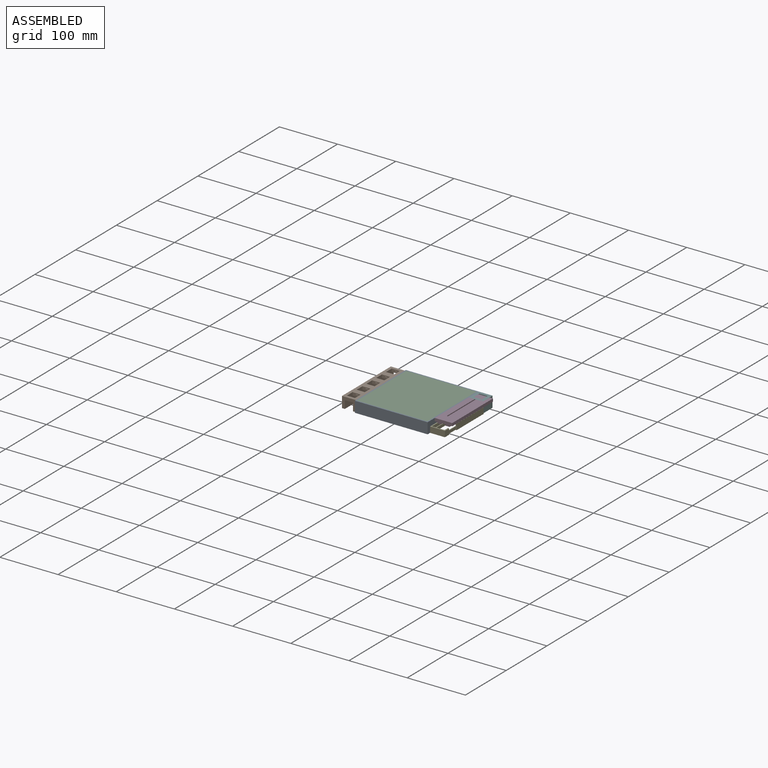
[diagram: assembled view]
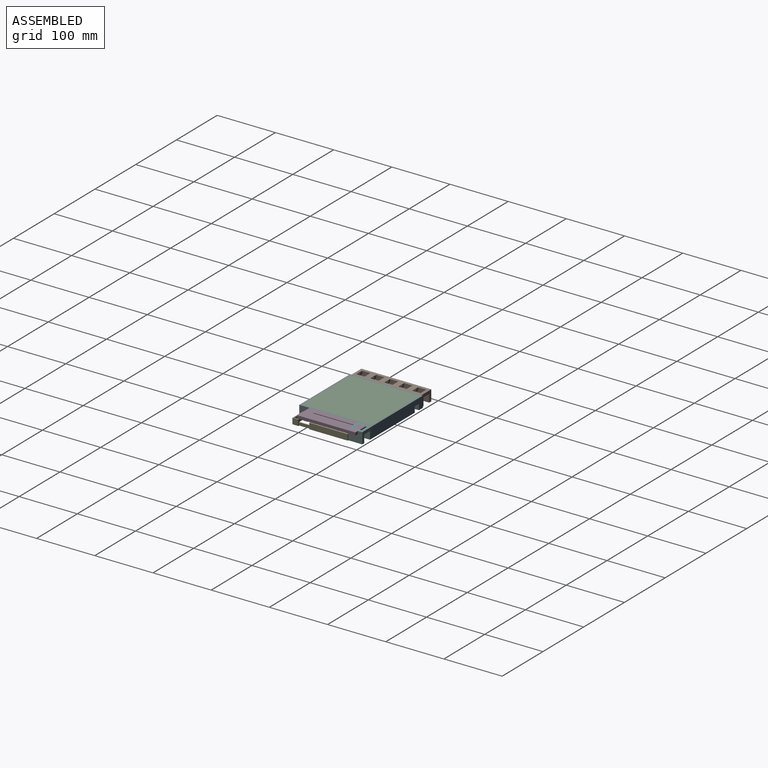
[diagram: assembled view, second angle]
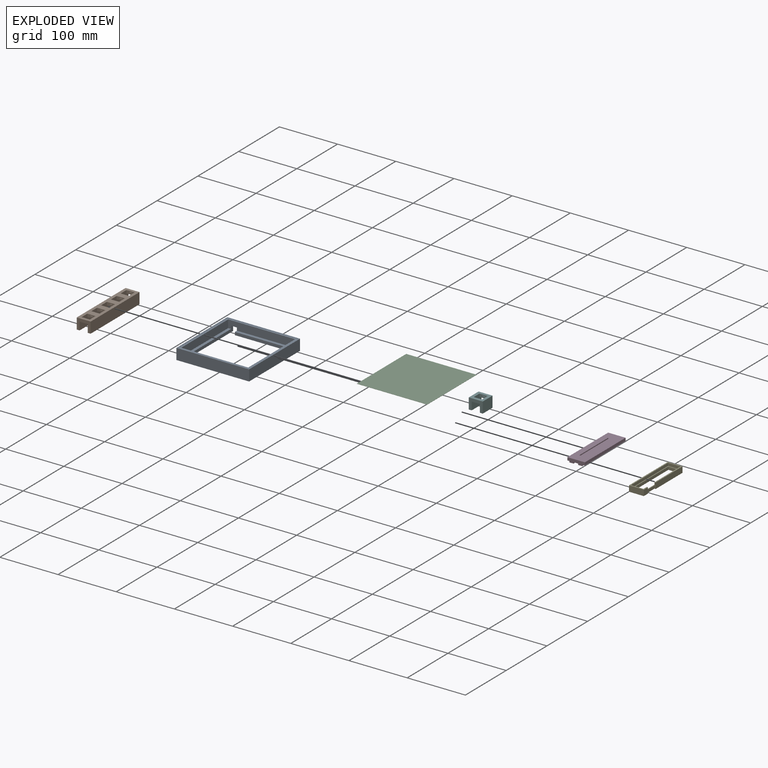
[diagram: exploded view]
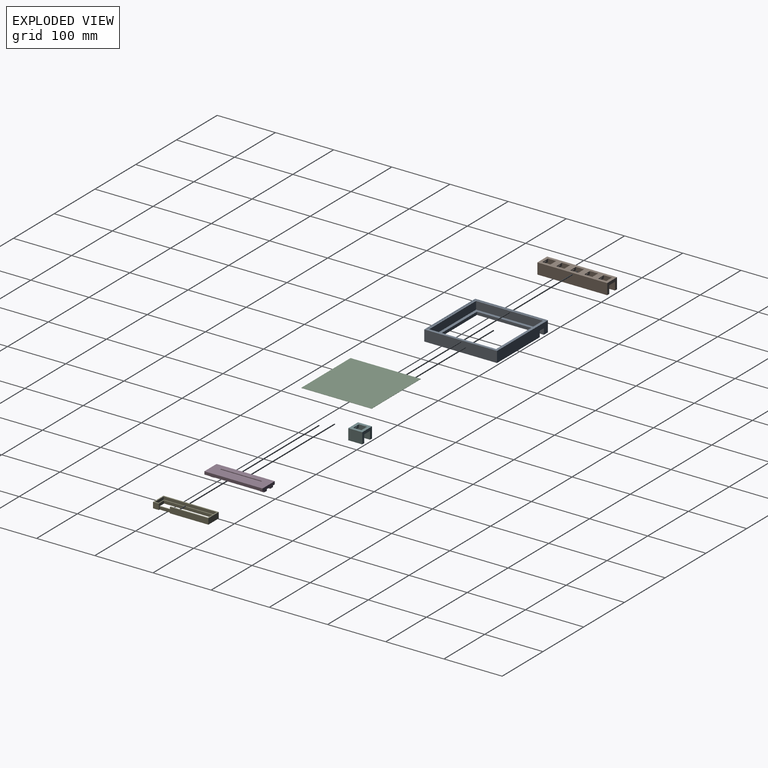
[diagram: exploded view, second angle]
FCSTD DOCUMENT  (FreeCAD 1.0R39319 (Git))
Label: Case
License: All rights reserved
LicenseURL: https://en.wikipedia.org/wiki/All_rights_reserved
objects: Part::Box×22, App::Link×11, Part::Cut×10, App::Part×8, App::VarSet×7, Part::MultiFuse×5, Part::Extrusion×2, Sketcher::SketchObject×1, Part::Mirroring×1, Part::Cylinder×1
note: 43 computed .brp shape members not serialized (recipe doc carries the construction recipe); baked Part::Feature solids carry a one-line shape summary decoded from their .brp

FEATURE [Sketcher::SketchObject] Sketch001  label="LedMatrixShoulders"
  ArcFitTolerance = 1e-06
  FullyConstrained = true
  MakeInternals = false
  MapMode = 5
  Placement = pos=(0,0,0) rot=(1,0,0;1.5708rad)
  expr: Constraints[18] = <<Led Matrix Vars>>.led_matrix_pcb_shoulder_to_transparent_layer_height
  expr: Constraints[19] = <<Led Matrix Vars>>.led_matrix_pcb_shoulder_height
  expr: Constraints[20] = <<Led Matrix Vars>>.led_matrix_pcb_shoulder_width
  expr: Constraints[21] = <<Led Matrix Vars>>.led_matrix_transparent_layer_spacing
  expr: Constraints[25] = <<Led Matrix Vars>>.led_matrix_pcb_width / 2
  expr: Constraints[3] = <<Led Matrix Vars>>.led_matrix_transparent_layer_height
  expr: Constraints[4] = <<Led Matrix Vars>>.led_matrix_transparent_layer_shoulder_width
  sketch-geometry (9):
    g0: LineSegment StartX=-60.5 StartY=0 StartZ=0 EndX=-60.5 EndY=-0.3 EndZ=0
    g1: LineSegment StartX=-60.5 StartY=-0.3 StartZ=0 EndX=-57.5 EndY=-0.3 EndZ=0
    g2: LineSegment StartX=-60.5 StartY=0 StartZ=0 EndX=-62.5 EndY=0 EndZ=0
    g3: LineSegment StartX=-62.5 StartY=0 StartZ=0 EndX=-62.5 EndY=-18.8 EndZ=0
    g4: LineSegment StartX=-62.5 StartY=-18.8 StartZ=0 EndX=-52.5 EndY=-18.8 EndZ=0
    g5: LineSegment StartX=-52.5 StartY=-18.8 StartZ=0 EndX=-52.5 EndY=-13.8 EndZ=0
    g6: LineSegment StartX=-52.5 StartY=-13.8 StartZ=0 EndX=-57.5 EndY=-13.8 EndZ=0
    g7: LineSegment StartX=-57.5 StartY=-13.8 StartZ=0 EndX=-57.5 EndY=-0.3 EndZ=0
    g8: LineSegment [constr] StartX=-57.5 StartY=-0.3 StartZ=0 EndX=0 EndY=-0.3 EndZ=0
  constraints (27):
    c: Vertical(g0)
    c: Coincident(g0,g1)
    c: Horizontal(g1)
    c: DistanceY(g0,g0) = 0.3
    c: DistanceX(g1,g1) = 3
    c: Coincident(g0,g2)
    c: Horizontal(g2)
    c: Coincident(g2,g3)
    c: Vertical(g3)
    c: Coincident(g3,g4)
    c: Horizontal(g4)
    c: Coincident(g4,g5)
    c: Vertical(g5)
    c: Coincident(g5,g6)
    c: Horizontal(g6)
    c: Coincident(g6,g7)
    c: Coincident(g7,g1)
    c: Vertical(g7)
    c: DistanceY(g7,g7) = 13.5
    c: DistanceY(g5,g5) = 5
    c: DistanceX(g6,g6) = 5
    c: DistanceX(g2,g2) = 2
    c: PointOnObject(g2,g-1)
    c: Coincident(g8,g1)
    c: Horizontal(g8)
    c: DistanceX(g8,g8) = 57.5
    c: PointOnObject(g8,g-2)
FEATURE [App::VarSet] VarSet  label="Led Matrix Vars"
  height_total = 18.8
  led_matrix_pcb_height = 2
  led_matrix_pcb_led_height = 1.5
  led_matrix_pcb_shoulder_height = 5
  led_matrix_pcb_shoulder_to_transparent_layer_height = 13.5
  led_matrix_pcb_shoulder_width = 5
  led_matrix_pcb_width = 115
  led_matrix_pin_width = 10
  led_matrix_screw_diameter = 3
  led_matrix_screw_spacing = 1
  led_matrix_space_from_leds_to_transparent_layer = 10
  led_matrix_transparent_layer_height = 0.3
  led_matrix_transparent_layer_shoulder_width = 3
  led_matrix_transparent_layer_spacing = 2
  transparent_layer_width_total = 121
  width_total = 125
  expr: height_total = led_matrix_pcb_shoulder_height + led_matrix_pcb_shoulder_to_transparent_layer_height + led_matrix_transparent_layer_height
  expr: led_matrix_pcb_shoulder_to_transparent_layer_height = led_matrix_pcb_height + led_matrix_pcb_led_height + led_matrix_space_from_leds_to_transparent_layer
  expr: led_matrix_pcb_shoulder_width = 2 * led_matrix_screw_spacing + led_matrix_screw_diameter
  expr: transparent_layer_width_total = led_matrix_transparent_layer_shoulder_width * 2 + led_matrix_pcb_width
  expr: width_total = led_matrix_pcb_width + led_matrix_transparent_layer_shoulder_width * 2 + led_matrix_transparent_layer_spacing * 2
FEATURE [Part::Extrusion] Extrude
  Base = -> Sketch001
  Dir = (0,-1,2e-16)
  DirMode = 2
  FaceMakerClass = Part::FaceMakerBullseye
  FaceMakerMode = 3
  LengthFwd = 125
  LengthRev = 0
  Solid = true
  Symmetric = false
  expr: LengthFwd = <<Led Matrix Vars>>.led_matrix_pcb_width + 2 * (<<Led Matrix Vars>>.led_matrix_transparent_layer_shoulder_width + <<Led Matrix Vars>>.led_matrix_transparent_layer_spacing)
FEATURE [Part::Mirroring] Part__Mirroring  label="Extrude (Mirror #1)"
  Base = (0,0,0)
  MirrorPlane = -> YZ_Plane001
  Normal = (1,-1e-16,1e-16)
  Source = -> Extrude
FEATURE [App::Link] Link  label="Extrude001"
  LinkPlacement = pos=(-62.5,-62.5,0) rot=(0,0,1;1.5708rad)
  LinkedObject = -> Extrude
  Placement = pos=(-62.5,-62.5,0) rot=(0,0,1;1.5708rad)
  expr: .Placement.Base.x = -(<<Led Matrix Vars>>.led_matrix_pcb_width / 2) - <<Led Matrix Vars>>.led_matrix_transparent_layer_shoulder_width - <<Led Matrix Vars>>.led_matrix_transparent_layer_spacing
  expr: .Placement.Base.y = -(<<Led Matrix Vars>>.led_matrix_pcb_width / 2) - <<Led Matrix Vars>>.led_matrix_transparent_layer_shoulder_width - <<Led Matrix Vars>>.led_matrix_transparent_layer_spacing
FEATURE [App::Link] Link001  label="Extrude002"
  LinkPlacement = pos=(62.5,-62.5,0) rot=(0,0,1;-1.5708rad)
  LinkedObject = -> Extrude
  Placement = pos=(62.5,-62.5,0) rot=(0,0,1;-1.5708rad)
  expr: .Placement.Base.x = <<Led Matrix Vars>>.led_matrix_pcb_width / 2 + <<Led Matrix Vars>>.led_matrix_transparent_layer_shoulder_width + <<Led Matrix Vars>>.led_matrix_transparent_layer_spacing
  expr: .Placement.Base.y = -(<<Led Matrix Vars>>.led_matrix_pcb_width / 2) - <<Led Matrix Vars>>.led_matrix_transparent_layer_shoulder_width - <<Led Matrix Vars>>.led_matrix_transparent_layer_spacing
FEATURE [Part::Box] Box  label="Cube"
  AttacherType = Attacher::AttachEngine3D
  Height = 10
  Length = 10
  Placement = pos=(-52.5,-10,-18.8) rot=(0,0,1;0rad)
  Width = 10
  expr: .Placement.Base.x = -<<Led Matrix Vars>>.led_matrix_pcb_width / 2 + <<Led Matrix Vars>>.led_matrix_pin_width - <<Led Matrix Vars>>.led_matrix_pcb_shoulder_width
  expr: .Placement.Base.y = -<<Led Matrix Vars>>.led_matrix_transparent_layer_spacing - <<Led Matrix Vars>>.led_matrix_transparent_layer_shoulder_width - <<Led Matrix Vars>>.led_matrix_pcb_shoulder_width
  expr: .Placement.Base.z = -<<Led Matrix Vars>>.led_matrix_transparent_layer_height - <<Led Matrix Vars>>.led_matrix_pcb_shoulder_to_transparent_layer_height - <<Led Matrix Vars>>.led_matrix_pcb_shoulder_height
  expr: Height = <<Led Matrix Vars>>.led_matrix_pcb_shoulder_height * 2
  expr: Length = <<Led Matrix Vars>>.led_matrix_pin_width
  expr: Width = <<Led Matrix Vars>>.led_matrix_pcb_shoulder_width + <<Led Matrix Vars>>.led_matrix_transparent_layer_shoulder_width + <<Led Matrix Vars>>.led_matrix_transparent_layer_spacing
FEATURE [Part::Cut] Cut
  Base = -> Link001
  Refine = true
  Tool = -> Box
FEATURE [App::VarSet] VarSet001  label="Switch Socket Vars"
  Switch_Socket_height = 5.2
  Switch_Socket_spacing = 5
  height_below_slow = 3
  height_faceplate_to_slot = 1.2
  height_slot = 1
  switch_count = 0
  width = 14
  width_slot = 4.5
  width_total = 24
  expr: Switch_Socket_height = height_faceplate_to_slot + height_slot + height_below_slow
  expr: width_total = width + Switch_Socket_spacing * 2
FEATURE [Part::Box] Box001  label="Frame"
  AttacherType = Attacher::AttachEngine3D
  Height = 5.2
  Length = 24
  Width = 24
  expr: Height = <<Switch Socket Vars>>.Switch_Socket_height
  expr: Length = <<Switch Socket Vars>>.width + 2 * <<Switch Socket Vars>>.Switch_Socket_spacing
  expr: Width = <<Switch Socket Vars>>.width + 2 * <<Switch Socket Vars>>.Switch_Socket_spacing
FEATURE [Part::Box] Box002  label="CutOut"
  AttacherType = Attacher::AttachEngine3D
  Height = 5.2
  Length = 14
  Placement = pos=(5,5,0) rot=(0,0,1;0rad)
  Width = 14
  expr: .Placement.Base.x = <<Switch Socket Vars>>.Switch_Socket_spacing
  expr: .Placement.Base.y = <<Switch Socket Vars>>.Switch_Socket_spacing
  expr: Height = <<Switch Socket Vars>>.Switch_Socket_height
  expr: Length = <<Switch Socket Vars>>.width
  expr: Width = <<Switch Socket Vars>>.width
FEATURE [Part::Cut] Cut001
  Base = -> Box001
  Placement = pos=(0,0,-5.2) rot=(0,0,1;0rad)
  Refine = true
  Tool = -> Box002
  expr: .Placement.Base.z = -<<Switch Socket Vars>>.Switch_Socket_height
FEATURE [Part::Box] Box003  label="slot_bottom"
  AttacherType = Attacher::AttachEngine3D
  Height = 1
  Length = 4.5
  Placement = pos=(9.75,4,-2.2) rot=(0,0,1;0rad)
  Width = 1
  expr: .Placement.Base.x = <<Switch Socket Vars>>.width / 2 - <<Switch Socket Vars>>.width_slot / 2 + <<Switch Socket Vars>>.Switch_Socket_spacing
  expr: .Placement.Base.y = <<Switch Socket Vars>>.Switch_Socket_spacing - <<Switch Socket Vars>>.height_slot
  expr: .Placement.Base.z = -<<Switch Socket Vars>>.height_faceplate_to_slot - <<Switch Socket Vars>>.height_slot
  expr: Height = <<Switch Socket Vars>>.height_slot
  expr: Length = <<Switch Socket Vars>>.width_slot
  expr: Width = <<Switch Socket Vars>>.height_slot
FEATURE [Part::Box] Box004  label="slot_top"
  AttacherType = Attacher::AttachEngine3D
  Height = 1
  Length = 4.5
  Placement = pos=(9.75,19,-2.2) rot=(0,0,1;0rad)
  Width = 1
  expr: .Placement.Base.x = <<Switch Socket Vars>>.width / 2 - <<Switch Socket Vars>>.width_slot / 2 + <<Switch Socket Vars>>.Switch_Socket_spacing
  expr: .Placement.Base.y = <<Switch Socket Vars>>.Switch_Socket_spacing + <<Switch Socket Vars>>.width
  expr: .Placement.Base.z = -<<Switch Socket Vars>>.height_faceplate_to_slot - <<Switch Socket Vars>>.height_slot
  expr: Height = <<Switch Socket Vars>>.height_slot
  expr: Length = <<Switch Socket Vars>>.width_slot
  expr: Width = <<Switch Socket Vars>>.height_slot
FEATURE [Part::Cut] Cut002
  Base = -> Cut001
  Refine = true
  Tool = -> Box003
FEATURE [Part::Cut] Cut003
  Base = -> Cut002
  Refine = true
  Tool = -> Box004
FEATURE [App::Part] Part001  label="MX Low Profile Switch Socket 1"
  Group = -> [VarSet001,Box001,Box002,Cut001,Box004,Box003,Cut002,Cut003]
  Origin = -> Origin002
FEATURE [App::Link] Link002  label="MX Low Profile Switch Socket 2"
  LinkPlacement = pos=(0,-24,0) rot=(0,0,1;0rad)
  LinkedObject = -> Part001
  Placement = pos=(0,-24,0) rot=(0,0,1;0rad)
  expr: .Placement.Base.y = -<<Switch Socket Vars>>.width_total
FEATURE [App::Link] Link003  label="MX Low Profile Switch Socket 3"
  LinkPlacement = pos=(0,-48,0) rot=(0,0,1;0rad)
  LinkedObject = -> Part001
  Placement = pos=(0,-48,0) rot=(0,0,1;0rad)
  expr: .Placement.Base.y = -2 * <<Switch Socket Vars>>.width_total
FEATURE [App::Link] Link004  label="MX Low Profile Switch Socket 4"
  LinkPlacement = pos=(0,-72,0) rot=(0,0,1;0rad)
  LinkedObject = -> Link003
  Placement = pos=(0,-72,0) rot=(0,0,1;0rad)
  expr: .Placement.Base.y = -3 * <<Switch Socket Vars>>.width_total
FEATURE [App::Link] Link005  label="MX Low Profile Switch Socket 5"
  LinkPlacement = pos=(0,-96,0) rot=(0,0,1;0rad)
  LinkedObject = -> Part001
  Placement = pos=(0,-96,0) rot=(0,0,1;0rad)
  expr: .Placement.Base.y = -4 * <<Switch Socket Vars>>.width_total
FEATURE [Part::Box] Box005  label="Cube001"
  AttacherType = Attacher::AttachEngine3D
  Height = 0.3
  Length = 121
  Placement = pos=(0,0,-0.3) rot=(0,0,1;0rad)
  Width = 121
  expr: .Placement.Base.z = -<<Led Matrix Vars>>.led_matrix_transparent_layer_height
  expr: Height = <<Led Matrix Vars>>.led_matrix_transparent_layer_height
  expr: Length = <<Led Matrix Vars>>.transparent_layer_width_total
  expr: Width = <<Led Matrix Vars>>.transparent_layer_width_total
FEATURE [App::Part] Part006  label="Let Matrix Cover"
  Group = -> [Box005]
  Origin = -> Origin005
  Placement = pos=(-60.5,-123,0) rot=(0,0,1;0rad)
  expr: .Placement.Base.x = -<<Led Matrix Vars>>.width_total / 2 + <<Led Matrix Vars>>.led_matrix_transparent_layer_spacing
  expr: .Placement.Base.y = -<<Led Matrix Vars>>.width_total + <<Led Matrix Vars>>.led_matrix_transparent_layer_spacing
FEATURE [Part::Box] Box006  label="Cube002"
  AttacherType = Attacher::AttachEngine3D
  Height = 18.8
  Length = 5
  Placement = pos=(0,-96,-18.8) rot=(0,0,1;0rad)
  Width = 120
  expr: .Placement.Base.y = -<<Switch Socket Vars>>.width_total * 4
  expr: .Placement.Base.z = -<<Led Matrix Vars>>.height_total
  expr: Height = <<Led Matrix Vars>>.height_total
  expr: Length = <<Switch Socket Vars>>.Switch_Socket_spacing
  expr: Width = <<Switch Socket Vars>>.width_total * 5
FEATURE [App::Link] Link006  label="Cube003"
  LinkPlacement = pos=(19,-96,-18.8) rot=(0,0,1;0rad)
  LinkedObject = -> Box006
  Placement = pos=(19,-96,-18.8) rot=(0,0,1;0rad)
  expr: .Placement.Base.x = <<Switch Socket Vars>>.width_total - <<Switch Socket Vars>>.Switch_Socket_spacing
  expr: .Placement.Base.y = -<<Switch Socket Vars>>.width_total * 4
  expr: .Placement.Base.z = -<<Led Matrix Vars>>.height_total
FEATURE [App::Part] Part005  label="Switches"
  Group = -> [Part001,Link002,Link003,Link004,Link005,Box006,Link006]
  Origin = -> Origin004
  Placement = pos=(-86.5,-26.5,0) rot=(0,0,1;0rad)
  expr: .Placement.Base.x = -<<Led Matrix Vars>>.width_total / 2 - <<Switch Socket Vars>>.width_total
  expr: .Placement.Base.y = -<<Switch Socket Vars>>.width_total - <<Led Matrix Vars>>.led_matrix_transparent_layer_spacing - <<Led Matrix Vars>>.led_matrix_transparent_layer_shoulder_width - <<Led Matrix Vars>>.led_matrix_pcb_width / 2 + 5 * <<Switch Socket Vars>>.width_total / 2
FEATURE [Part::Box] Box007  label="FaderBody"
  AttacherType = Attacher::AttachEngine3D
  Height = 5
  Length = 30
  Width = 100
  expr: Height = <<Components>>.Faceplate_Width
  expr: Length = <<Fader Vars>>.Width + <<Fader Vars>>.Spacing * 2
  expr: Width = <<Fader Vars>>.Length + <<Fader Vars>>.Spacing * 2
FEATURE [App::VarSet] VarSet003  label="Fader Vars"
  Length = 90
  Screw_Diameter = 3
  Screw_Length = 5
  Screw_Wall_Thickness = 2
  Shoulder_Height = 5
  Slot_Length = 70
  Slot_Width = 2
  Spacing = 5
  Width = 20
  expr: Slot_Length = Length - 2 * 10 mm
FEATURE [Part::Box] Box008  label="FaderSlot"
  AttacherType = Attacher::AttachEngine3D
  Height = 5
  Length = 2
  Placement = pos=(10,15,0) rot=(0,0,1;0rad)
  Width = 70
  expr: .Placement.Base.x = 5 mm + <<Fader Vars>>.Spacing
  expr: .Placement.Base.y = (<<Fader Vars>>.Length - <<Fader Vars>>.Slot_Length + <<Fader Vars>>.Spacing * 2) / 2
  expr: Height = <<Components>>.Faceplate_Width
  expr: Length = <<Fader Vars>>.Slot_Width
  expr: Width = <<Fader Vars>>.Slot_Length
FEATURE [Part::Cut] Cut004  label="Top Plate"
  Base = -> Box007
  Refine = true
  Tool = -> Box008
FEATURE [Part::Box] Box009  label="FaderShoulder"
  AttacherType = Attacher::AttachEngine3D
  Height = 5
  Length = 7
  Placement = pos=(0,5,-5) rot=(0,0,1;0rad)
  Width = 7
  expr: .Placement.Base.y = <<Fader Vars>>.Spacing
  expr: .Placement.Base.z = -<<Components>>.Faceplate_Width
  expr: Height = <<Fader Vars>>.Shoulder_Height
  expr: Length = <<Fader Vars>>.Screw_Diameter + <<Fader Vars>>.Screw_Wall_Thickness * 2
  expr: Width = <<Fader Vars>>.Screw_Diameter + <<Fader Vars>>.Screw_Wall_Thickness * 2
FEATURE [Part::Cylinder] Cylinder  label="ScrewHole"
  Angle = 360
  AttacherType = Attacher::AttachEngine3D
  FirstAngle = 0
  Height = 5
  Placement = pos=(3.5,8.5,-5) rot=(0,0,1;0rad)
  Radius = 1.5
  SecondAngle = 0
  expr: .Placement.Base.x = <<Fader Vars>>.Screw_Diameter / 2 + <<Fader Vars>>.Screw_Wall_Thickness
  expr: .Placement.Base.y = <<Fader Vars>>.Spacing + <<Fader Vars>>.Screw_Diameter / 2 + <<Fader Vars>>.Screw_Wall_Thickness
  expr: .Placement.Base.z = -<<Components>>.Faceplate_Width
  expr: Height = <<Fader Vars>>.Screw_Length
  expr: Radius = <<Fader Vars>>.Screw_Diameter / 2
FEATURE [Part::Cut] Cut005  label="Mount Socket 1"
  Base = -> Box009
  Refine = true
  Tool = -> Cylinder
FEATURE [App::Link] Link007  label="Mount Socket 2"
  LinkPlacement = pos=(15,0,0) rot=(0,0,1;0rad)
  LinkedObject = -> Cut005
  Placement = pos=(15,0,0) rot=(0,0,1;0rad)
FEATURE [App::Link] Link008  label="Mount Socket 3"
  LinkPlacement = pos=(0,85,0) rot=(0,0,1;0rad)
  LinkedObject = -> Cut005
  Placement = pos=(0,85,0) rot=(0,0,1;0rad)
FEATURE [App::Link] Link009  label="Mount Socket 4"
  LinkPlacement = pos=(15,85,0) rot=(0,0,1;0rad)
  LinkedObject = -> Cut005
  Placement = pos=(15,85,0) rot=(0,0,1;0rad)
FEATURE [App::Part] Part007  label="Fader"
  Group = -> [VarSet003,Box008,Box007,Cut004,Box009,Cylinder,Cut005,Link007,Link008,Link009]
  Origin = -> Origin006
  Placement = pos=(62.5,-107.5,-5) rot=(0,0,1;0rad)
  expr: .Placement.Base.y = (-<<Led Matrix Vars>>.width_total - <<Fader Vars>>.Length) / 2
FEATURE [App::VarSet] VarSet002  label="Components"
  Faceplate_Width = 5
FEATURE [App::VarSet] VarSet004  label="FV"
  bottom_to_port_top = 27
  bottom_to_ports = 8
  frame_height = 10
  length = 91
  lip = 1.5
  top_to_ports = 60.35
  wall = 2
  width = 21.5
FEATURE [Part::Box] Box010  label="Cube004"
  AttacherType = Attacher::AttachEngine3D
  Height = 5
  Length = 21.5
  Width = 91
  expr: Length = <<FV>>.width
  expr: Width = <<FV>>.length
FEATURE [Part::Box] Box011  label="Cube005"
  AttacherType = Attacher::AttachEngine3D
  Height = 5
  Length = 18.5
  Placement = pos=(1.5,1.5,0) rot=(0,0,1;0rad)
  Width = 88
  expr: Length = <<FV>>.width - <<FV>>.lip * 2
  expr: Width = <<FV>>.length - <<FV>>.lip * 2
FEATURE [Part::Cut] Cut006  label="lip"
  Base = -> Box010
  Refine = true
  Tool = -> Box011
FEATURE [Part::Box] Box013  label="frame_left"
  AttacherType = Attacher::AttachEngine3D
  Height = 10
  Length = 2
  Placement = pos=(-2,0,0) rot=(0,0,1;0rad)
  Width = 91
  expr: .Placement.Base.x = -<<FV>>.wall
  expr: Height = <<FV>>.frame_height
  expr: Length = <<FV>>.wall
  expr: Width = <<FV>>.length
FEATURE [Part::Box] Box014  label="frame_bottom"
  AttacherType = Attacher::AttachEngine3D
  Height = 10
  Length = 25.5
  Placement = pos=(-2,-2,0) rot=(0,0,1;0rad)
  Width = 2
  expr: .Placement.Base.x = -<<FV>>.wall
  expr: .Placement.Base.y = -<<FV>>.wall
  expr: Height = <<FV>>.frame_height
  expr: Length = <<FV>>.width + <<FV>>.wall * 2
  expr: Width = <<FV>>.wall
FEATURE [Part::Box] Box015  label="frame_top"
  AttacherType = Attacher::AttachEngine3D
  Height = 10
  Length = 25.5
  Placement = pos=(-2,91,0) rot=(0,0,1;0rad)
  Width = 2
  expr: .Placement.Base.x = -<<FV>>.wall
  expr: .Placement.Base.y = <<FV>>.length
  expr: Height = <<FV>>.frame_height
  expr: Length = <<FV>>.width + <<FV>>.wall * 2
  expr: Width = <<FV>>.wall
FEATURE [Part::Box] Box016  label="frame_right_bottom"
  AttacherType = Attacher::AttachEngine3D
  Height = 10
  Length = 2
  Placement = pos=(21.5,0,0) rot=(0,0,1;0rad)
  Width = 8
  expr: .Placement.Base.x = <<FV>>.width
  expr: Height = <<FV>>.frame_height
  expr: Length = <<FV>>.wall
  expr: Width = <<FV>>.bottom_to_ports
FEATURE [Part::Box] Box017  label="frame_right_top"
  AttacherType = Attacher::AttachEngine3D
  Height = 10
  Length = 2
  Placement = pos=(21.5,27,0) rot=(0,0,1;0rad)
  Width = 64
  expr: .Placement.Base.x = <<FV>>.width
  expr: .Placement.Base.y = <<FV>>.bottom_to_port_top
  expr: Height = <<FV>>.frame_height
  expr: Length = <<FV>>.wall
  expr: Width = <<FV>>.length - <<FV>>.bottom_to_port_top
FEATURE [Part::MultiFuse] Fusion
  Refine = true
  Shapes = -> [Box013,Box014]
FEATURE [Part::MultiFuse] Fusion001
  Refine = true
  Shapes = -> [Fusion,Box017]
FEATURE [Part::MultiFuse] Fusion002
  Refine = true
  Shapes = -> [Fusion001,Box016]
FEATURE [Part::MultiFuse] Fusion003  label="frame"
  Refine = true
  Shapes = -> [Fusion002,Box015]
FEATURE [Part::MultiFuse] Fusion004
  Refine = true
  Shapes = -> [Cut006,Fusion003]
FEATURE [App::Part] Part008  label="Fader v2"
  Group = -> [VarSet004,Box013,Box014,Fusion001,Box010,Box011,Cut006,Box015,Box016,Box017,Fusion003,Fusion,Fusion002,Fusion004]
  Origin = -> Origin
  Placement = pos=(64.5,-117,-18.8) rot=(0,0,1;0rad)
  expr: .Placement.Base.x = <<Led Matrix Vars>>.led_matrix_transparent_layer_spacing + <<Led Matrix Vars>>.width_total / 2
  expr: .Placement.Base.y = -<<FV>>.length - <<FV>>.wall - (<<Switch Socket Vars>>.width + 2 * <<Switch Socket Vars>>.Switch_Socket_spacing)
  expr: .Placement.Base.z = -<<Led Matrix Vars>>.height_total
FEATURE [Part::Box] Box018  label="Frame001"
  AttacherType = Attacher::AttachEngine3D
  Height = 5.2
  Length = 24
  Width = 24
  expr: Height = <<Switch Socket Vars001>>.Switch_Socket_height
  expr: Length = <<Switch Socket Vars001>>.width + 2 * <<Switch Socket Vars001>>.Switch_Socket_spacing
  expr: Width = <<Switch Socket Vars001>>.width + 2 * <<Switch Socket Vars001>>.Switch_Socket_spacing
FEATURE [Part::Box] Box019  label="CutOut001"
  AttacherType = Attacher::AttachEngine3D
  Height = 5.2
  Length = 14
  Placement = pos=(5,5,0) rot=(0,0,1;0rad)
  Width = 14
  expr: .Placement.Base.x = <<Switch Socket Vars001>>.Switch_Socket_spacing
  expr: .Placement.Base.y = <<Switch Socket Vars001>>.Switch_Socket_spacing
  expr: Height = <<Switch Socket Vars001>>.Switch_Socket_height
  expr: Length = <<Switch Socket Vars001>>.width
  expr: Width = <<Switch Socket Vars001>>.width
FEATURE [Part::Box] Box020  label="slot_bottom001"
  AttacherType = Attacher::AttachEngine3D
  Height = 1
  Length = 4.5
  Placement = pos=(9.75,4,-2.2) rot=(0,0,1;0rad)
  Width = 1
  expr: .Placement.Base.x = <<Switch Socket Vars001>>.width / 2 - <<Switch Socket Vars001>>.width_slot / 2 + <<Switch Socket Vars001>>.Switch_Socket_spacing
  expr: .Placement.Base.y = <<Switch Socket Vars001>>.Switch_Socket_spacing - <<Switch Socket Vars001>>.height_slot
  expr: .Placement.Base.z = -<<Switch Socket Vars001>>.height_faceplate_to_slot - <<Switch Socket Vars001>>.height_slot
  expr: Height = <<Switch Socket Vars001>>.height_slot
  expr: Length = <<Switch Socket Vars001>>.width_slot
  expr: Width = <<Switch Socket Vars001>>.height_slot
FEATURE [Part::Box] Box021  label="slot_top001"
  AttacherType = Attacher::AttachEngine3D
  Height = 1
  Length = 4.5
  Placement = pos=(9.75,19,-2.2) rot=(0,0,1;0rad)
  Width = 1
  expr: .Placement.Base.x = <<Switch Socket Vars001>>.width / 2 - <<Switch Socket Vars001>>.width_slot / 2 + <<Switch Socket Vars001>>.Switch_Socket_spacing
  expr: .Placement.Base.y = <<Switch Socket Vars001>>.Switch_Socket_spacing + <<Switch Socket Vars001>>.width
  expr: .Placement.Base.z = -<<Switch Socket Vars001>>.height_faceplate_to_slot - <<Switch Socket Vars001>>.height_slot
  expr: Height = <<Switch Socket Vars001>>.height_slot
  expr: Length = <<Switch Socket Vars001>>.width_slot
  expr: Width = <<Switch Socket Vars001>>.height_slot
FEATURE [Part::Box] Box022  label="Cube006"
  AttacherType = Attacher::AttachEngine3D
  Height = 18.8
  Length = 5
  Placement = pos=(0,0,-18.8) rot=(0,0,1;0rad)
  Width = 24
  expr: .Placement.Base.y = 0
  expr: .Placement.Base.z = -<<Led Matrix Vars001>>.height_total
  expr: Height = <<Led Matrix Vars001>>.height_total
  expr: Length = <<Switch Socket Vars001>>.Switch_Socket_spacing
  expr: Width = <<Switch Socket Vars001>>.width_total * 1
FEATURE [Part::Cut] Cut007
  Base = -> Box018
  Placement = pos=(0,0,-5.2) rot=(0,0,1;0rad)
  Refine = true
  Tool = -> Box019
  expr: .Placement.Base.z = -<<Switch Socket Vars001>>.Switch_Socket_height
FEATURE [Part::Cut] Cut008
  Base = -> Cut007
  Refine = true
  Tool = -> Box020
FEATURE [Part::Cut] Cut009
  Base = -> Cut008
  Refine = true
  Tool = -> Box021
FEATURE [App::Link] Link014  label="Cube007"
  LinkPlacement = pos=(19,0,-18.8) rot=(0,0,1;0rad)
  LinkedObject = -> Box022
  Placement = pos=(19,0,-18.8) rot=(0,0,1;0rad)
  expr: .Placement.Base.x = <<Switch Socket Vars001>>.width_total - <<Switch Socket Vars001>>.Switch_Socket_spacing
  expr: .Placement.Base.y = -<<Switch Socket Vars001>>.width_total * 0
  expr: .Placement.Base.z = -<<Led Matrix Vars001>>.height_total
FEATURE [App::VarSet] VarSet005  label="Led Matrix Vars001"
  height_total = 18.8
  led_matrix_pcb_height = 2
  led_matrix_pcb_led_height = 1.5
  led_matrix_pcb_shoulder_height = 5
  led_matrix_pcb_shoulder_to_transparent_layer_height = 13.5
  led_matrix_pcb_shoulder_width = 5
  led_matrix_pcb_width = 115
  led_matrix_pin_width = 10
  led_matrix_screw_diameter = 3
  led_matrix_screw_spacing = 1
  led_matrix_space_from_leds_to_transparent_layer = 10
  led_matrix_transparent_layer_height = 0.3
  led_matrix_transparent_layer_shoulder_width = 3
  led_matrix_transparent_layer_spacing = 2
  transparent_layer_width_total = 121
  width_total = 125
  expr: height_total = led_matrix_pcb_shoulder_height + led_matrix_pcb_shoulder_to_transparent_layer_height + led_matrix_transparent_layer_height
  expr: led_matrix_pcb_shoulder_to_transparent_layer_height = led_matrix_pcb_height + led_matrix_pcb_led_height + led_matrix_space_from_leds_to_transparent_layer
  expr: led_matrix_pcb_shoulder_width = 2 * led_matrix_screw_spacing + led_matrix_screw_diameter
  expr: transparent_layer_width_total = led_matrix_transparent_layer_shoulder_width * 2 + led_matrix_pcb_width
  expr: width_total = led_matrix_pcb_width + led_matrix_transparent_layer_shoulder_width * 2 + led_matrix_transparent_layer_spacing * 2
FEATURE [App::VarSet] VarSet006  label="Switch Socket Vars001"
  Switch_Socket_height = 5.2
  Switch_Socket_spacing = 5
  height_below_slow = 3
  height_faceplate_to_slot = 1.2
  height_slot = 1
  switch_count = 0
  width = 14
  width_slot = 4.5
  width_total = 24
  expr: Switch_Socket_height = height_faceplate_to_slot + height_slot + height_below_slow
  expr: width_total = width + Switch_Socket_spacing * 2
FEATURE [App::Part] Part009  label="MX Low Profile Switch Socket 010"
  Group = -> [VarSet006,Box018,Box019,Cut007,Box021,Box020,Cut008,Cut009]
  Origin = -> Origin007
FEATURE [App::Part] Part010  label="FaderSwitch"
  Group = -> [Part009,Box022,Link014]
  Origin = -> Origin008
  Placement = pos=(62.5,-24,0) rot=(0,0,1;0rad)
  expr: .Placement.Base.x = <<Led Matrix Vars>>.width_total / 2
  expr: .Placement.Base.y = -<<Switch Socket Vars>>.width_total
FEATURE [Part::Extrusion] Extrude001  label="Extrude003"
  Base = -> Sketch001
  Dir = (0,-1,2e-16)
  DirMode = 2
  FaceMakerClass = Part::FaceMakerBullseye
  FaceMakerMode = 3
  LengthFwd = 125
  LengthRev = 0
  Solid = true
  Symmetric = false
  expr: LengthFwd = <<Led Matrix Vars>>.led_matrix_pcb_width + 2 * (<<Led Matrix Vars>>.led_matrix_transparent_layer_shoulder_width + <<Led Matrix Vars>>.led_matrix_transparent_layer_spacing)
FEATURE [App::Part] Part  label="Led Matrix Socket"
  Group = -> [Sketch001,Extrude,Part__Mirroring,Link001,Box,Cut,Link,VarSet,Extrude001]
  Origin = -> Origin001
